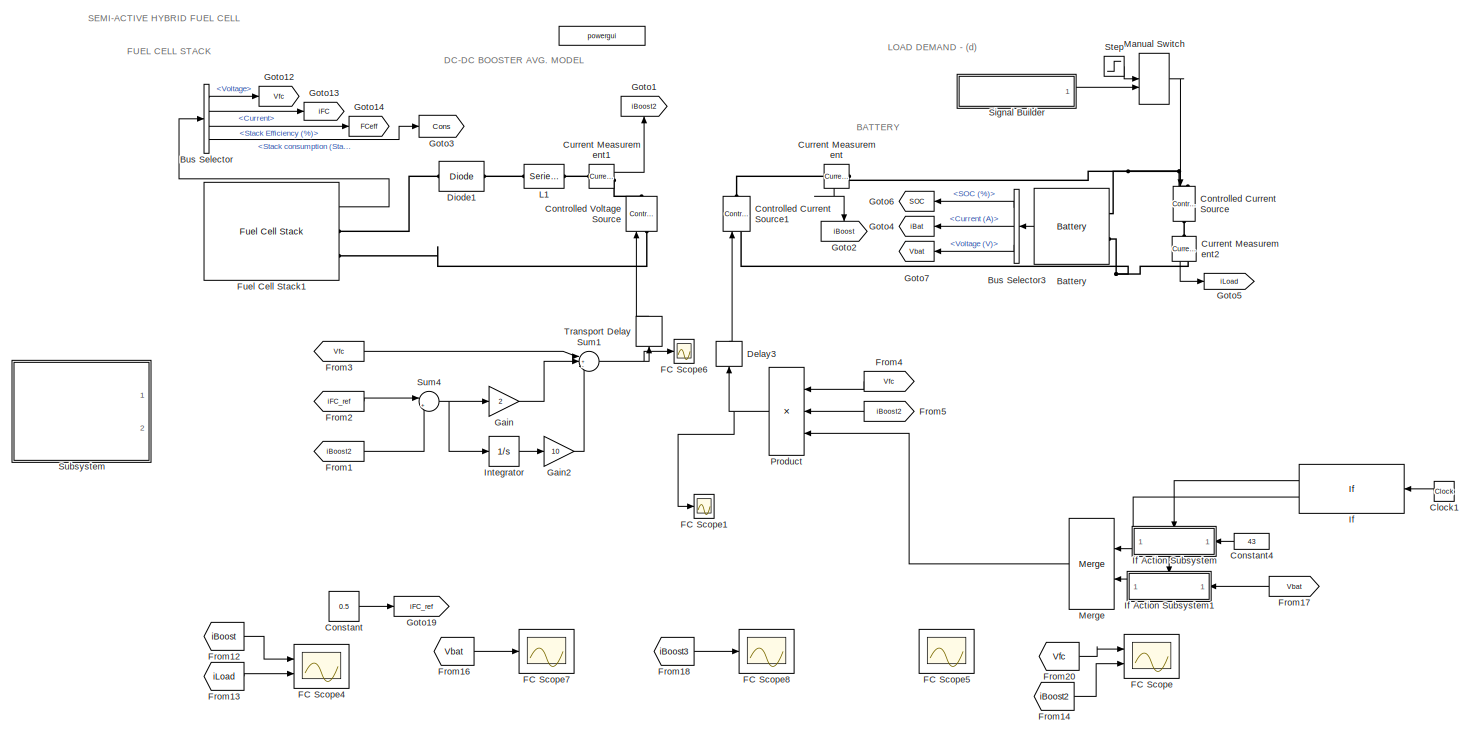
[diagram: root canvas - part 1/2, full width, middle band]
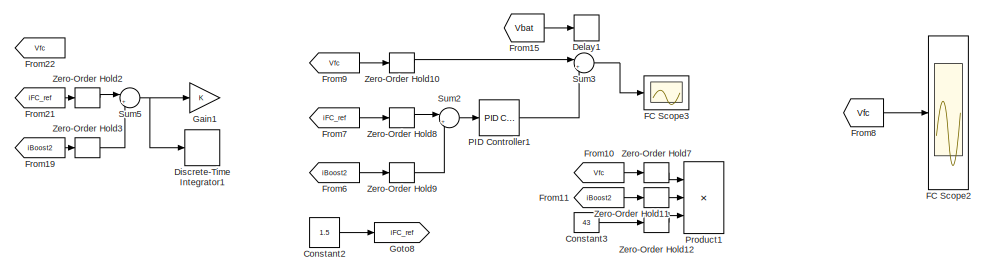
[diagram: root canvas - part 2/2, bottom center region]
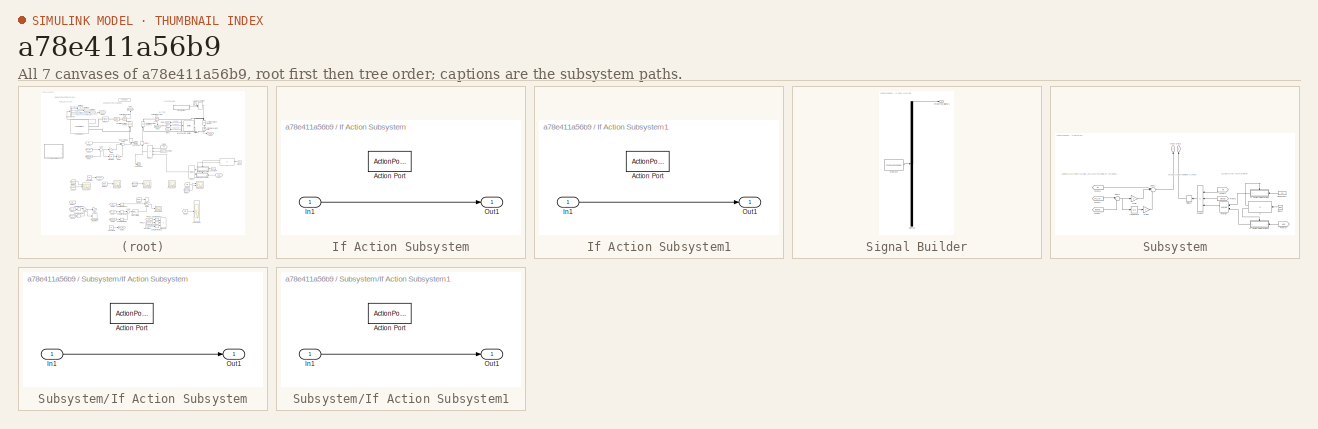
[diagram: thumbnail index - all 7 canvases of the model, root first then tree order]
MODEL slx_a78e411a56b9
KIND model
CONFIG AbsTol = auto
CONFIG EnableMultiTasking = off
CONFIG FixedStep = auto
CONFIG MaxStep = auto
CONFIG MinStep = auto
CONFIG RelTol = 1e-3
CONFIG SampleTimeConstraint = Unconstrained
CONFIG SolverName = VariableStepAuto
CONFIG StartTime = 0.0
CONFIG StopTime = 10
BLOCK [Reference]    REF=spspowerguiLib/powergui
  Ports = []
  Priority = 1
  SourceBlock = spspowerguiLib/powergui
  SourceProductBaseCode = PS
  SourceType = PSB option menu block
BLOCK [Reference] Battery  REF=spsBatteryLib/Battery
  Ports = [0, 1, 0, 0, 0, 2]
  SourceBlock = spsBatteryLib/Battery
  SourceProductBaseCode = PS
  SourceType = Battery
BLOCK [BusSelector] Bus Selector
  OutputSignals = Voltage,Current,Stack Efficiency (%),Stack consumption (Standard lpm) [Air(Yellow); Fuel(Magenta)]
  Ports = [1, 4]
BLOCK [BusSelector] Bus Selector3
  OutputSignals = SOC (%),Current (A),Voltage (V)
  Ports = [1, 3]
BLOCK [Clock] Clock1
BLOCK [Constant] Constant
  Value = 0.5
BLOCK [Constant] Constant2
  Commented = on
  Value = 1.5
BLOCK [Constant] Constant3
  Commented = on
  Value = 43
BLOCK [Constant] Constant4
  Value = 43
BLOCK [Reference] Controlled Current Source  REF=spsControlledCurrentSourceLib/Controlled Current Source
  NameLocation = left
  Ports = [1, 0, 0, 0, 0, 1, 1]
  SourceBlock = spsControlledCurrentSourceLib/Controlled Current Source
  SourceProductBaseCode = PS
  SourceType = Controlled Current Source
BLOCK [Reference] Controlled Current Source1  REF=spsControlledCurrentSourceLib/Controlled Current Source
  NameLocation = right
  Ports = [1, 0, 0, 0, 0, 1, 1]
  SourceBlock = spsControlledCurrentSourceLib/Controlled Current Source
  SourceProductBaseCode = PS
  SourceType = Controlled Current Source
BLOCK [Reference] Controlled Voltage Source  REF=spsControlledVoltageSourceLib/Controlled Voltage Source
  Ports = [1, 0, 0, 0, 0, 1, 1]
  SourceBlock = spsControlledVoltageSourceLib/Controlled Voltage Source
  SourceProductBaseCode = PS
  SourceType = Controlled Voltage Source
BLOCK [Reference] Current Measurement  REF=spsCurrentMeasurementLib/Current Measurement
  Ports = [0, 1, 0, 0, 0, 1, 1]
  SourceBlock = spsCurrentMeasurementLib/Current Measurement
  SourceProductBaseCode = PS
  SourceType = Current Measurement
  UserDataPersistent = on
BLOCK [Reference] Current Measurement1  REF=spsCurrentMeasurementLib/Current Measurement
  NameLocation = top
  Ports = [0, 1, 0, 0, 0, 1, 1]
  SourceBlock = spsCurrentMeasurementLib/Current Measurement
  SourceProductBaseCode = PS
  SourceType = Current Measurement
  UserDataPersistent = on
BLOCK [Reference] Current Measurement2  REF=spsCurrentMeasurementLib/Current Measurement
  NameLocation = left
  Ports = [0, 1, 0, 0, 0, 1, 1]
  SourceBlock = spsCurrentMeasurementLib/Current Measurement
  SourceProductBaseCode = PS
  SourceType = Current Measurement
  UserDataPersistent = on
BLOCK [Delay] Delay1
  Commented = on
  DelayLength = 1
  InputPortMap = u0
  Ports = [1, 1]
BLOCK [Delay] Delay3
  DelayLength = 1
  InputPortMap = u0
  NameLocation = left
  Ports = [1, 1]
BLOCK [Reference] Diode1  REF=spsDiodeLib/Diode
  Ports = [0, 0, 0, 0, 0, 1, 1]
  SourceBlock = spsDiodeLib/Diode
  SourceProductBaseCode = PS
  SourceType = Diode
BLOCK [DiscreteIntegrator] Discrete-Time Integrator1
  Commented = on
  ICPrevOutput = DiscIntNeverNeededParam
  ICPrevScaledInput = DiscIntNeverNeededParam
  InitialConditionSetting = Auto
  Ports = [1, 1]
  SampleTime = -1
  gainval = 3
BLOCK [Scope] FC Scope
  Floating = off
  NumInputPorts = 2
  Ports = [2]
  ScopeSpecificationString = Simulink.scopes.TimeScopeBlockCfg('CurrentConfiguration', extmgr.ConfigurationSet(extmgr.Configuration('Core','General UI',true,'FigureColor',[1 1 1]),extmgr.Configuration('Core','Source UI',true),extmgr.Configuration('Sources','WiredSimulink',true),extmgr.Configuration('Visuals','Time Domain',true,'SerializedDisplays',{struct('MinYLimReal','15.56335','MaxYLimReal','18.27075','YLabelReal','Voltage...<+4185ch>
BLOCK [Scope] FC Scope1
  Floating = off
  NumInputPorts = 1
  Ports = [1]
  ScopeSpecificationString = Simulink.scopes.TimeScopeBlockCfg('CurrentConfiguration', extmgr.ConfigurationSet(extmgr.Configuration('Core','General UI',true,'FigureColor',[1 1 1]),extmgr.Configuration('Core','Source UI',true),extmgr.Configuration('Sources','WiredSimulink',true,'DataLoggingVariableName','ScopeData1'),extmgr.Configuration('Visuals','Time Domain',true,'SerializedDisplays',{struct('MinYLimReal','-0.07232','MaxYLi...<+4144ch>
BLOCK [Scope] FC Scope2
  Commented = on
  Floating = off
  NumInputPorts = 1
  Ports = [1]
  ScopeSpecificationString = Simulink.scopes.TimeScopeBlockCfg('CurrentConfiguration', extmgr.ConfigurationSet(extmgr.Configuration('Core','General UI',true,'FigureColor',[1 1 1]),extmgr.Configuration('Core','Source UI',true),extmgr.Configuration('Sources','WiredSimulink',true,'DataLoggingVariableName','ScopeData2'),extmgr.Configuration('Visuals','Time Domain',true,'SerializedDisplays',{struct('MinYLimReal','11.59617','MaxYLi...<+4145ch>
BLOCK [Scope] FC Scope3
  Commented = on
  Floating = off
  NumInputPorts = 1
  Ports = [1]
  ScopeSpecificationString = Simulink.scopes.TimeScopeBlockCfg('CurrentConfiguration', extmgr.ConfigurationSet(extmgr.Configuration('Core','General UI',true,'FigureColor',[1 1 1]),extmgr.Configuration('Core','Source UI',true),extmgr.Configuration('Sources','WiredSimulink',true,'DataLoggingVariableName','ScopeData3'),extmgr.Configuration('Visuals','Time Domain',true,'SerializedDisplays',{struct('MinYLimReal','11.59617','MaxYLi...<+4140ch>
BLOCK [Scope] FC Scope4
  Floating = off
  NumInputPorts = 2
  Ports = [2]
  ScopeSpecificationString = Simulink.scopes.TimeScopeBlockCfg('CurrentConfiguration', extmgr.ConfigurationSet(extmgr.Configuration('Core','General UI',true,'FigureColor',[1 1 1]),extmgr.Configuration('Core','Source UI',true),extmgr.Configuration('Sources','WiredSimulink',true,'DataLoggingVariableName','ScopeData4'),extmgr.Configuration('Visuals','Time Domain',true,'SerializedDisplays',{struct('MinYLimReal','-0.06111','MaxYLi...<+4228ch>
BLOCK [Scope] FC Scope5
  Floating = off
  NumInputPorts = 1
  Ports = [1]
  ScopeSpecificationString = Simulink.scopes.TimeScopeBlockCfg('CurrentConfiguration', extmgr.ConfigurationSet(extmgr.Configuration('Core','General UI',true,'FigureColor',[1 1 1]),extmgr.Configuration('Core','Source UI',true),extmgr.Configuration('Sources','WiredSimulink',true,'DataLoggingVariableName','ScopeData5'),extmgr.Configuration('Visuals','Time Domain',true,'SerializedDisplays',{struct('MinYLimReal','0.5','MaxYLimReal...<+4141ch>
BLOCK [Scope] FC Scope6
  Floating = off
  NumInputPorts = 1
  Ports = [1]
  ScopeSpecificationString = Simulink.scopes.TimeScopeBlockCfg('CurrentConfiguration', extmgr.ConfigurationSet(extmgr.Configuration('Core','General UI',true,'FigureColor',[1 1 1]),extmgr.Configuration('Core','Source UI',true),extmgr.Configuration('Sources','WiredSimulink',true,'DataLoggingVariableName','ScopeData6'),extmgr.Configuration('Visuals','Time Domain',true,'SerializedDisplays',{struct('MinYLimReal','-18.10139','MaxYL...<+4144ch>
BLOCK [Scope] FC Scope7
  Floating = off
  NumInputPorts = 1
  Ports = [1]
  ScopeSpecificationString = Simulink.scopes.TimeScopeBlockCfg('CurrentConfiguration', extmgr.ConfigurationSet(extmgr.Configuration('Core','General UI',true,'FigureColor',[1 1 1]),extmgr.Configuration('Core','Source UI',true),extmgr.Configuration('Sources','WiredSimulink',true,'DataLoggingVariableName','ScopeData1'),extmgr.Configuration('Visuals','Time Domain',true,'SerializedDisplays',{struct('MinYLimReal','-5.38427','MaxYLi...<+4152ch>
BLOCK [Scope] FC Scope8
  Floating = off
  NumInputPorts = 1
  Ports = [1]
  ScopeSpecificationString = Simulink.scopes.TimeScopeBlockCfg('CurrentConfiguration', extmgr.ConfigurationSet(extmgr.Configuration('Core','General UI',true,'FigureColor',[1 1 1]),extmgr.Configuration('Core','Source UI',true),extmgr.Configuration('Sources','WiredSimulink',true,'DataLoggingVariableName','ScopeData2'),extmgr.Configuration('Visuals','Time Domain',true,'SerializedDisplays',{struct('MinYLimReal','-0.17385','MaxYLi...<+4157ch>
BLOCK [From] From1
  GotoTag = iBoost2
BLOCK [From] From10
  Commented = on
  GotoTag = Vfc
  TagVisibility = global
BLOCK [From] From11
  Commented = on
  GotoTag = iBoost2
BLOCK [From] From12
  GotoTag = iBoost
BLOCK [From] From13
  GotoTag = iLoad
BLOCK [From] From14
  GotoTag = iBoost2
BLOCK [From] From15
  Commented = on
  GotoTag = Vbat
  TagVisibility = global
BLOCK [From] From16
  GotoTag = Vbat
  TagVisibility = global
BLOCK [From] From17
  GotoTag = Vbat
  TagVisibility = global
BLOCK [From] From18
  GotoTag = iBoost3
BLOCK [From] From19
  Commented = on
  GotoTag = iBoost2
BLOCK [From] From2
  GotoTag = iFC_ref
BLOCK [From] From20
  GotoTag = Vfc
  TagVisibility = global
BLOCK [From] From21
  Commented = on
  GotoTag = iFC_ref
BLOCK [From] From22
  Commented = on
  GotoTag = Vfc
  TagVisibility = global
BLOCK [From] From3
  GotoTag = Vfc
  TagVisibility = global
BLOCK [From] From4
  GotoTag = Vfc
  TagVisibility = global
BLOCK [From] From5
  GotoTag = iBoost2
BLOCK [From] From6
  Commented = on
  GotoTag = iBoost2
BLOCK [From] From7
  Commented = on
  GotoTag = iFC_ref
BLOCK [From] From8
  Commented = on
  GotoTag = Vfc
  TagVisibility = global
BLOCK [From] From9
  Commented = on
  GotoTag = Vfc
  TagVisibility = global
BLOCK [Reference] Fuel Cell Stack1  REF=spsFuelCellStackLib/Fuel Cell Stack
  Ports = [0, 1, 0, 0, 0, 0, 2]
  SourceBlock = spsFuelCellStackLib/Fuel Cell Stack
  SourceProductBaseCode = PS
  SourceType = Fuel Cell Stack
BLOCK [Gain] Gain
  Gain = 2
BLOCK [Gain] Gain1
  Commented = on
BLOCK [Gain] Gain2
  Gain = 10
BLOCK [Goto] Goto1
  GotoTag = iBoost2
  NameLocation = right
BLOCK [Goto] Goto12
  GotoTag = Vfc
  TagVisibility = global
BLOCK [Goto] Goto13
  GotoTag = iFC
BLOCK [Goto] Goto14
  GotoTag = FCeff
BLOCK [Goto] Goto19
  GotoTag = iFC_ref
BLOCK [Goto] Goto2
  GotoTag = iBoost
  NameLocation = left
BLOCK [Goto] Goto3
  GotoTag = Cons
BLOCK [Goto] Goto4
  GotoTag = iBat
BLOCK [Goto] Goto5
  GotoTag = iLoad
BLOCK [Goto] Goto6
  GotoTag = SOC
  TagVisibility = global
BLOCK [Goto] Goto7
  GotoTag = Vbat
  TagVisibility = global
BLOCK [Goto] Goto8
  Commented = on
  GotoTag = iFC_ref
BLOCK [If] If
  IfExpression = u1 < 0.00001
  Ports = [1, 2]
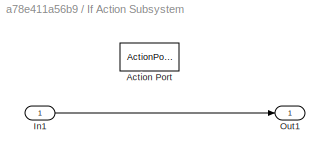
BLOCK [SubSystem] If Action Subsystem
  Ports = [1, 1, 0, 0, 0, 0, 0, 1]
  RequestExecContextInheritance = off
  TreatAsAtomicUnit = on
BLOCK [ActionPort] If Action Subsystem/Action Port
  ActionPortLabel = if(u1 < 0.00001)
BLOCK [Inport] If Action Subsystem/In1
BLOCK [Outport] If Action Subsystem/Out1
BLOCK [SubSystem] If Action Subsystem1
  Ports = [1, 1, 0, 0, 0, 0, 0, 1]
  RequestExecContextInheritance = off
  TreatAsAtomicUnit = on
BLOCK [ActionPort] If Action Subsystem1/Action Port
  ActionPortLabel = else
BLOCK [Inport] If Action Subsystem1/In1
BLOCK [Outport] If Action Subsystem1/Out1
BLOCK [Integrator] Integrator
  Ports = [1, 1]
BLOCK [Reference] L1  REF=spsSeriesRLCBranchLib/Series RLC Branch
  Ports = [0, 0, 0, 0, 0, 1, 1]
  SourceBlock = spsSeriesRLCBranchLib/Series RLC Branch
  SourceProductBaseCode = PS
  SourceType = Series RLC Branch
BLOCK [ManualSwitch] Manual Switch
BLOCK [Merge] Merge
  Ports = [2, 1]
BLOCK [Reference] PID Controller1  REF=pid_lib/PID Controller
  Commented = on
  Ports = [1, 1]
  SourceBlock = pid_lib/PID Controller
  SourceProductBaseCode = SL
  SourceType = PID 1dof
BLOCK [Product] Product
  Inputs = **/
  Ports = [3, 1]
BLOCK [Product] Product1
  Commented = on
  Inputs = **/
  Ports = [3, 1]
BLOCK [SubSystem] Signal Builder
  ClipboardFcn = sigbuilder_block('clipboard');
  CloseFcn = sigbuilder_block('close');
  ContinueFcn = sigbuilder_block('continue');
  CopyFcn = sigbuilder_block('copy');
  DeleteFcn = sigbuilder_block('delete');
  LoadFcn = sigbuilder_block('load');
  MaskHideContents = on
  ModelCloseFcn = sigbuilder_block('modelClose');
  NameChangeFcn = sigbuilder_block('namechange');
  OpenFcn = sigbuilder_block('open',[214 20 1706 550 ]);
  PauseFcn = sigbuilder_block('pause');
  Ports = [0, 1]
  PreSaveFcn = sigbuilder_block('preSave');
  RequestExecContextInheritance = off
  StartFcn = sigbuilder_block('start');
  StopFcn = sigbuilder_block('stop');
  Tag = STV Subsys
BLOCK [Demux] Signal Builder/Demux
  DisplayOption = none
  Outputs = 1
  Ports = [1, 1]
  Tag = STV Demux
BLOCK [FromWorkspace] Signal Builder/FromWs
  Tag = STV FromWs
  VariableName = tuvar
BLOCK [Outport] Signal Builder/Imported_Signal 1
  Tag = STV Outport
BLOCK [Step] Step
  After = 0.6
  SampleTime = 0
  Time = 0
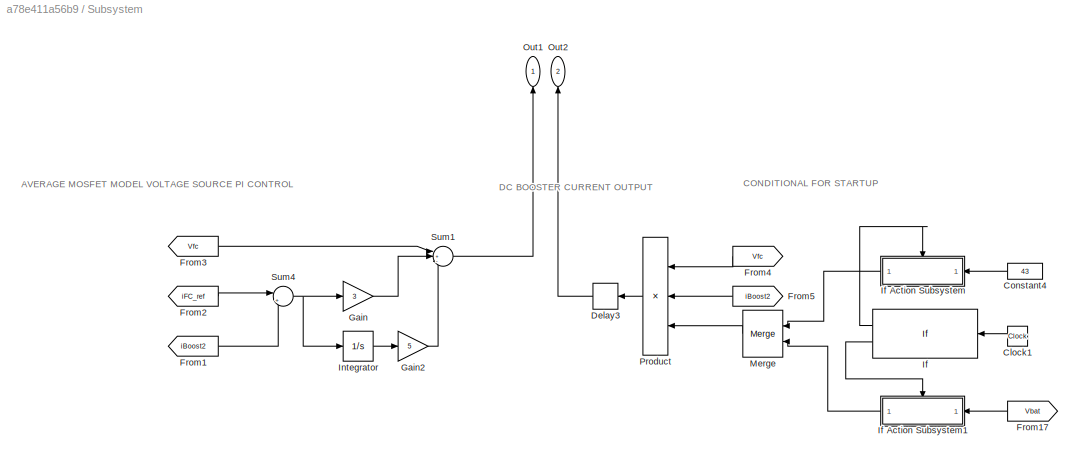
BLOCK [SubSystem] Subsystem
  Commented = on
  Ports = [0, 2]
  RequestExecContextInheritance = off
BLOCK [Clock] Subsystem/Clock1
BLOCK [Constant] Subsystem/Constant4
  Value = 43
BLOCK [Delay] Subsystem/Delay3
  DelayLength = 1
  InputPortMap = u0
  NameLocation = top
  Ports = [1, 1]
BLOCK [From] Subsystem/From1
  GotoTag = iBoost2
BLOCK [From] Subsystem/From17
  GotoTag = Vbat
  TagVisibility = global
BLOCK [From] Subsystem/From2
  GotoTag = iFC_ref
BLOCK [From] Subsystem/From3
  GotoTag = Vfc
  TagVisibility = global
BLOCK [From] Subsystem/From4
  GotoTag = Vfc
  TagVisibility = global
BLOCK [From] Subsystem/From5
  GotoTag = iBoost2
BLOCK [Gain] Subsystem/Gain
  Gain = 3
BLOCK [Gain] Subsystem/Gain2
  Gain = 5
BLOCK [If] Subsystem/If
  IfExpression = u1 < 0.01
  Ports = [1, 2]
BLOCK [SubSystem] Subsystem/If Action Subsystem
  Ports = [1, 1, 0, 0, 0, 0, 0, 1]
  RequestExecContextInheritance = off
  TreatAsAtomicUnit = on
BLOCK [ActionPort] Subsystem/If Action Subsystem/Action Port
  ActionPortLabel = if(u1 < 0.01)
BLOCK [Inport] Subsystem/If Action Subsystem/In1
BLOCK [Outport] Subsystem/If Action Subsystem/Out1
BLOCK [SubSystem] Subsystem/If Action Subsystem1
  Ports = [1, 1, 0, 0, 0, 0, 0, 1]
  RequestExecContextInheritance = off
  TreatAsAtomicUnit = on
BLOCK [ActionPort] Subsystem/If Action Subsystem1/Action Port
  ActionPortLabel = else
BLOCK [Inport] Subsystem/If Action Subsystem1/In1
BLOCK [Outport] Subsystem/If Action Subsystem1/Out1
BLOCK [Integrator] Subsystem/Integrator
  Ports = [1, 1]
BLOCK [Merge] Subsystem/Merge
  Ports = [2, 1]
BLOCK [Outport] Subsystem/Out1
  NameLocation = right
BLOCK [Outport] Subsystem/Out2
  NameLocation = right
  Port = 2
BLOCK [Product] Subsystem/Product
  Inputs = **/
  Ports = [3, 1]
BLOCK [Sum] Subsystem/Sum1
  Inputs = |+--
  Ports = [3, 1]
BLOCK [Sum] Subsystem/Sum4
  Inputs = |+-
  Ports = [2, 1]
BLOCK [Sum] Sum1
  Inputs = |+--
  Ports = [3, 1]
BLOCK [Sum] Sum2
  Commented = on
  Inputs = |+-
  Ports = [2, 1]
BLOCK [Sum] Sum3
  Commented = on
  Inputs = |+-
  Ports = [2, 1]
BLOCK [Sum] Sum4
  Inputs = |+-
  Ports = [2, 1]
BLOCK [Sum] Sum5
  Commented = on
  Inputs = |+-
  Ports = [2, 1]
BLOCK [TransportDelay] Transport Delay
  DelayTime = 0.00001
  NameLocation = right
  Ports = [1, 1]
BLOCK [ZeroOrderHold] Zero-Order Hold10
  Commented = on
  SampleTime = -1
BLOCK [ZeroOrderHold] Zero-Order Hold11
  Commented = on
  SampleTime = -1
BLOCK [ZeroOrderHold] Zero-Order Hold12
  Commented = on
  SampleTime = -1
BLOCK [ZeroOrderHold] Zero-Order Hold2
  Commented = on
  SampleTime = -1
BLOCK [ZeroOrderHold] Zero-Order Hold3
  Commented = on
  SampleTime = -1
BLOCK [ZeroOrderHold] Zero-Order Hold7
  Commented = on
  SampleTime = -1
BLOCK [ZeroOrderHold] Zero-Order Hold8
  Commented = on
  SampleTime = -1
BLOCK [ZeroOrderHold] Zero-Order Hold9
  Commented = on
  SampleTime = -1
ANNOTATION (root): BATTERY
ANNOTATION (root): DC-DC BOOSTER AVG. MODEL
ANNOTATION (root): FUEL CELL STACK
ANNOTATION (root): LOAD DEMAND - (d)
ANNOTATION (root): SEMI-ACTIVE HYBRID FUEL CELL
ANNOTATION Subsystem: AVERAGE MOSFET MODEL VOLTAGE SOURCE PI CONTROL
ANNOTATION Subsystem: CONDITIONAL FOR STARTUP
ANNOTATION Subsystem: DC BOOSTER CURRENT OUTPUT
LINE Battery:1 -> Bus Selector3:1
LINE Bus Selector3:1 -> Goto6:1
LINE Bus Selector3:2 -> Goto4:1
LINE Bus Selector3:3 -> Goto7:1
LINE Bus Selector:1 -> Goto12:1
LINE Bus Selector:2 -> Goto13:1
LINE Bus Selector:3 -> Goto14:1
LINE Bus Selector:4 -> Goto3:1
LINE Clock1:1 -> If:1
LINE Constant2:1 -> Goto8:1
LINE Constant3:1 -> Zero-Order Hold12:1
LINE Constant4:1 -> If Action Subsystem:1
LINE Constant:1 -> Goto19:1
LINE Current Measurement1:1 -> Goto1:1
LINE Current Measurement2:1 -> Goto5:1
LINE Current Measurement:1 -> Goto2:1
LINE Delay3:1 -> Controlled Current Source1:1
LINE From10:1 -> Zero-Order Hold7:1
LINE From11:1 -> Zero-Order Hold11:1
LINE From12:1 -> FC Scope4:1
LINE From13:1 -> FC Scope4:2
LINE From14:1 -> FC Scope:2
LINE From15:1 -> Delay1:1
LINE From16:1 -> FC Scope7:1
LINE From17:1 -> If Action Subsystem1:1
LINE From18:1 -> FC Scope8:1
LINE From19:1 -> Zero-Order Hold3:1
LINE From1:1 -> Sum4:2
LINE From20:1 -> FC Scope:1
LINE From21:1 -> Zero-Order Hold2:1
LINE From2:1 -> Sum4:1
LINE From3:1 -> Sum1:1
LINE From4:1 -> Product:1
LINE From5:1 -> Product:2
LINE From6:1 -> Zero-Order Hold9:1
LINE From7:1 -> Zero-Order Hold8:1
LINE From8:1 -> FC Scope2:1
LINE From9:1 -> Zero-Order Hold10:1
LINE Fuel Cell Stack1:1 -> Bus Selector:1
LINE Gain2:1 -> Sum1:3
LINE Gain:1 -> Sum1:2
LINE If Action Subsystem/In1:1 -> If Action Subsystem/Out1:1
LINE If Action Subsystem1/In1:1 -> If Action Subsystem1/Out1:1
LINE If Action Subsystem1:1 -> Merge:2
LINE If Action Subsystem:1 -> Merge:1
LINE If:1 -> If Action Subsystem:ifaction
LINE If:2 -> If Action Subsystem1:ifaction
LINE Integrator:1 -> Gain2:1
LINE Manual Switch:1 -> Controlled Current Source:1
LINE Merge:1 -> Product:3
LINE PID Controller1:1 -> Sum3:2
NET Product:1 -> Delay3:1, FC Scope1:1
LINE Signal Builder:1 -> Manual Switch:2
LINE Step:1 -> Manual Switch:1
LINE Subsystem/Clock1:1 -> Subsystem/If:1
LINE Subsystem/Constant4:1 -> Subsystem/If Action Subsystem:1
LINE Subsystem/Delay3:1 -> Subsystem/Out2:1
LINE Subsystem/From17:1 -> Subsystem/If Action Subsystem1:1
LINE Subsystem/From1:1 -> Subsystem/Sum4:2
LINE Subsystem/From2:1 -> Subsystem/Sum4:1
LINE Subsystem/From3:1 -> Subsystem/Sum1:1
LINE Subsystem/From4:1 -> Subsystem/Product:1
LINE Subsystem/From5:1 -> Subsystem/Product:2
LINE Subsystem/Gain2:1 -> Subsystem/Sum1:3
LINE Subsystem/Gain:1 -> Subsystem/Sum1:2
LINE Subsystem/If Action Subsystem/In1:1 -> Subsystem/If Action Subsystem/Out1:1
LINE Subsystem/If Action Subsystem1/In1:1 -> Subsystem/If Action Subsystem1/Out1:1
LINE Subsystem/If Action Subsystem1:1 -> Subsystem/Merge:2
LINE Subsystem/If Action Subsystem:1 -> Subsystem/Merge:1
LINE Subsystem/If:1 -> Subsystem/If Action Subsystem:ifaction
LINE Subsystem/If:2 -> Subsystem/If Action Subsystem1:ifaction
LINE Subsystem/Integrator:1 -> Subsystem/Gain2:1
LINE Subsystem/Merge:1 -> Subsystem/Product:3
LINE Subsystem/Product:1 -> Subsystem/Delay3:1
LINE Subsystem/Sum1:1 -> Subsystem/Out1:1
NET Subsystem/Sum4:1 -> Subsystem/Gain:1, Subsystem/Integrator:1
NET Sum1:1 -> FC Scope6:1, Transport Delay:1
LINE Sum2:1 -> PID Controller1:1
LINE Sum3:1 -> FC Scope3:1
NET Sum4:1 -> Gain:1, Integrator:1
NET Sum5:1 -> Discrete-Time Integrator1:1, Gain1:1
LINE Transport Delay:1 -> Controlled Voltage Source:1
LINE Zero-Order Hold10:1 -> Sum3:1
LINE Zero-Order Hold11:1 -> Product1:2
LINE Zero-Order Hold12:1 -> Product1:3
LINE Zero-Order Hold2:1 -> Sum5:1
LINE Zero-Order Hold3:1 -> Sum5:2
LINE Zero-Order Hold7:1 -> Product1:1
LINE Zero-Order Hold8:1 -> Sum2:1
LINE Zero-Order Hold9:1 -> Sum2:2
PNET net1: Battery:LConn1 -- Controlled Current Source:LConn1 -- Current Measurement:RConn1
PNET net2: Battery:LConn2 -- Controlled Current Source1:LConn1 -- Current Measurement2:RConn1
PLINE Controlled Current Source1:RConn1 -- Current Measurement:LConn1
PLINE Controlled Current Source:RConn1 -- Current Measurement2:LConn1
PLINE Controlled Voltage Source:LConn1 -- Fuel Cell Stack1:RConn2
PLINE Controlled Voltage Source:RConn1 -- Current Measurement1:RConn1
PLINE Current Measurement1:LConn1 -- L1:RConn1
PLINE Diode1:LConn1 -- Fuel Cell Stack1:RConn1
PLINE Diode1:RConn1 -- L1:LConn1
note: NET lines group one-source signal fan-out (src -> all destinations, sorted); 1:1 wires keep LINE; PNET lines group multi-terminal physical nets as a canonical sorted terminal list (undirected conserving connections); 2-terminal nets keep the pairwise PLINE form
